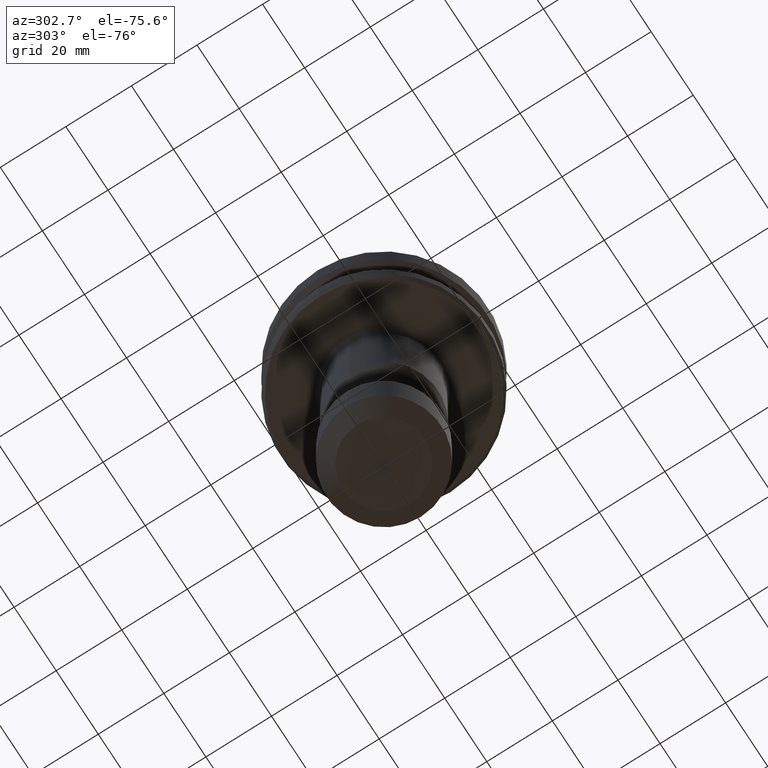
[diagram: clean part render]
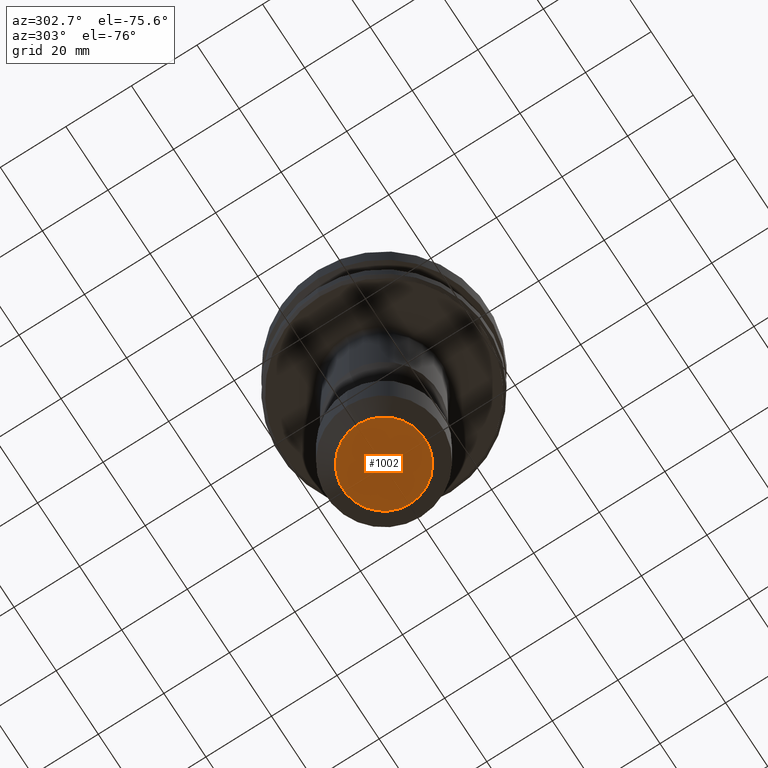
[diagram: same view with one face highlighted and labeled with its STEP entity id]
A machine part, auxiliary view. The second image highlights one B-rep face of the part: STEP entity #1002.
In plain terms, the highlighted planar face has unit normal (0, -0, 1).
Its self-contained STEP definition (entity closure, byte-faithful):
#25 = ORIENTED_EDGE ( 'NONE', *, *, #400, .F. ) ;
#108 = AXIS2_PLACEMENT_3D ( 'NONE', #612, #1555, #773 ) ;
#134 = CARTESIAN_POINT ( 'NONE',  ( -12.49901631902918500, 1.836849732545736900E-015, -100.0000000000000000 ) ) ;
#170 = PLANE ( 'NONE',  #108 ) ;
#194 = DIRECTION ( 'NONE',  ( -0.0000000000000000000, -0.0000000000000000000, 1.000000000000000000 ) ) ;
#202 = CIRCLE ( 'NONE', #722, 12.49901631902918500 ) ;
#209 = FACE_OUTER_BOUND ( 'NONE', #1133, .T. ) ;
#400 = EDGE_CURVE ( 'NONE', #694, #1329, #403, .T. ) ;
#403 = CIRCLE ( 'NONE', #819, 12.49901631902918500 ) ;
#612 = CARTESIAN_POINT ( 'NONE',  ( 0.0000000000000000000, 12.49901631902918500, -100.0000000000000000 ) ) ;
#694 = VERTEX_POINT ( 'NONE', #134 ) ;
#722 = AXIS2_PLACEMENT_3D ( 'NONE', #928, #194, #1059 ) ;
#765 = CARTESIAN_POINT ( 'NONE',  ( 0.0000000000000000000, 0.0000000000000000000, -100.0000000000000000 ) ) ;
#773 = DIRECTION ( 'NONE',  ( 1.000000000000000000, 0.0000000000000000000, 0.0000000000000000000 ) ) ;
#783 = ORIENTED_EDGE ( 'NONE', *, *, #1028, .F. ) ;
#819 = AXIS2_PLACEMENT_3D ( 'NONE', #765, #1117, #1115 ) ;
#928 = CARTESIAN_POINT ( 'NONE',  ( 0.0000000000000000000, 0.0000000000000000000, -100.0000000000000000 ) ) ;
#1002 = ADVANCED_FACE ( 'NONE', ( #209 ), #170, .F. ) ;
#1028 = EDGE_CURVE ( 'NONE', #1329, #694, #202, .T. ) ;
#1059 = DIRECTION ( 'NONE',  ( 1.000000000000000000, 0.0000000000000000000, 0.0000000000000000000 ) ) ;
#1115 = DIRECTION ( 'NONE',  ( 1.000000000000000000, 0.0000000000000000000, 0.0000000000000000000 ) ) ;
#1117 = DIRECTION ( 'NONE',  ( -0.0000000000000000000, -0.0000000000000000000, 1.000000000000000000 ) ) ;
#1133 = EDGE_LOOP ( 'NONE', ( #783, #25 ) ) ;
#1221 = CARTESIAN_POINT ( 'NONE',  ( 12.49901631902918500, 0.0000000000000000000, -100.0000000000000000 ) ) ;
#1329 = VERTEX_POINT ( 'NONE', #1221 ) ;
#1555 = DIRECTION ( 'NONE',  ( 0.0000000000000000000, -0.0000000000000000000, 1.000000000000000000 ) ) ;